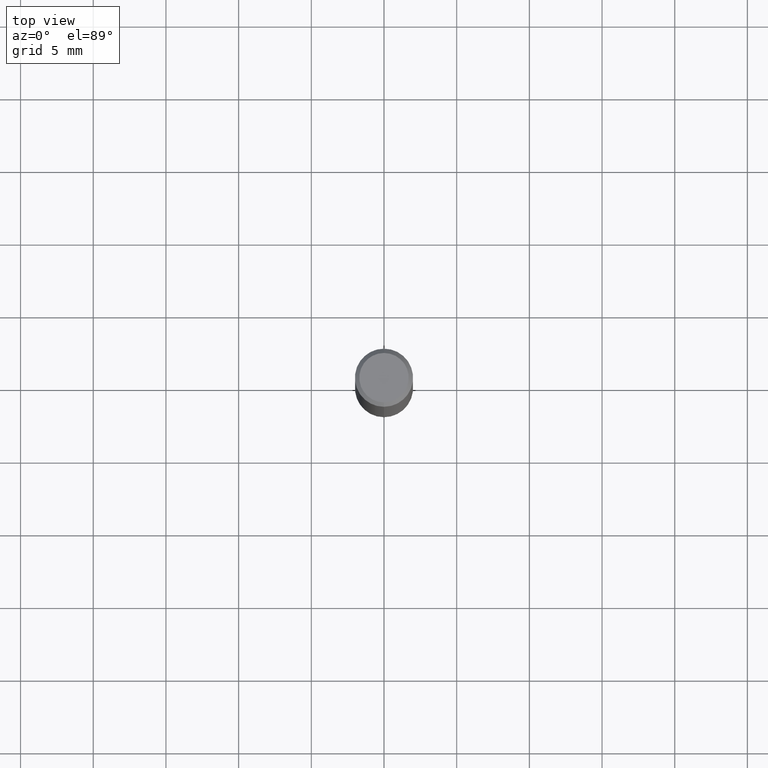
[diagram: clean part render]
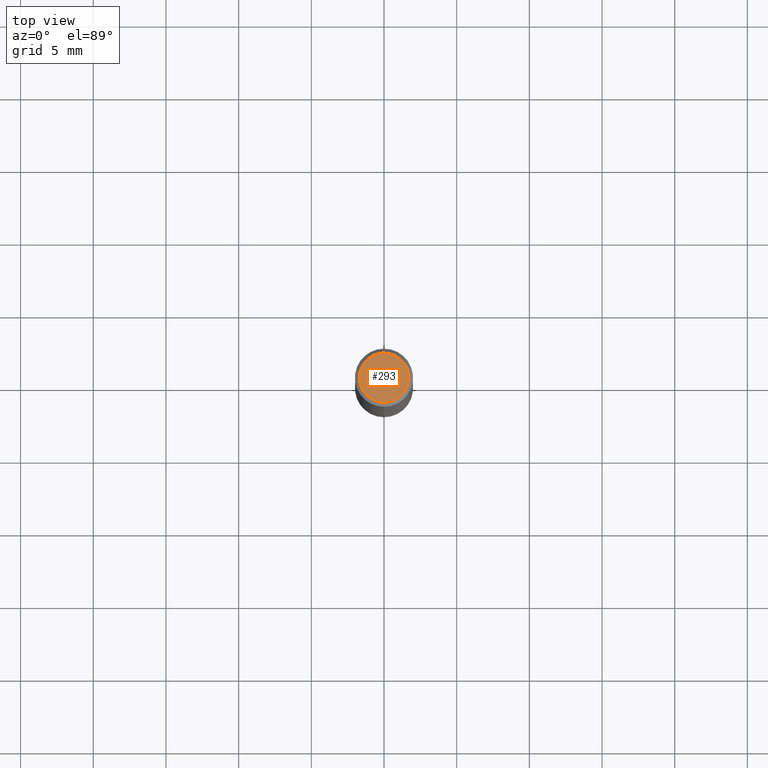
[diagram: same view with one face highlighted and labeled with its STEP entity id]
A machine part, top view. The second image highlights one B-rep face of the part: STEP entity #293.
In plain terms, the highlighted planar face has unit normal (-0, 0, 1).
Its self-contained STEP definition (entity closure, byte-faithful):
#175=VERTEX_POINT('',#413);
#213=EDGE_CURVE('',#353,#175,#459,.T.);
#293=ADVANCED_FACE('',(#548),#549,.T.);
#297=EDGE_CURVE('',#175,#353,#553,.T.);
#353=VERTEX_POINT('',#618);
#413=CARTESIAN_POINT('',(2.08183080149804E-016,-1.7,0.00999999999999801));
#459=CIRCLE('',#735,1.7);
#548=FACE_OUTER_BOUND('',#847,.T.);
#549=PLANE('',#848);
#553=CIRCLE('',#854,1.7);
#618=CARTESIAN_POINT('',(0.0,1.7,0.00999999999999801));
#735=AXIS2_PLACEMENT_3D('',#1061,#1062,#1063);
#847=EDGE_LOOP('',(#1159,#1160));
#848=AXIS2_PLACEMENT_3D('',#1161,#1162,#1163);
#854=AXIS2_PLACEMENT_3D('',#1167,#1168,#1169);
#1061=CARTESIAN_POINT('',(0.0,0.0,0.00999999999999801));
#1062=DIRECTION('',(0.0,0.0,-1.0));
#1063=DIRECTION('',(0.0,1.0,0.0));
#1159=ORIENTED_EDGE('',*,*,#213,.F.);
#1160=ORIENTED_EDGE('',*,*,#297,.F.);
#1161=CARTESIAN_POINT('',(0.0,0.85,0.00999999999999801));
#1162=DIRECTION('',(-0.0,0.0,1.0));
#1163=DIRECTION('',(0.0,-1.0,0.0));
#1167=CARTESIAN_POINT('',(0.0,0.0,0.00999999999999801));
#1168=DIRECTION('',(0.0,0.0,-1.0));
#1169=DIRECTION('',(0.0,1.0,0.0));